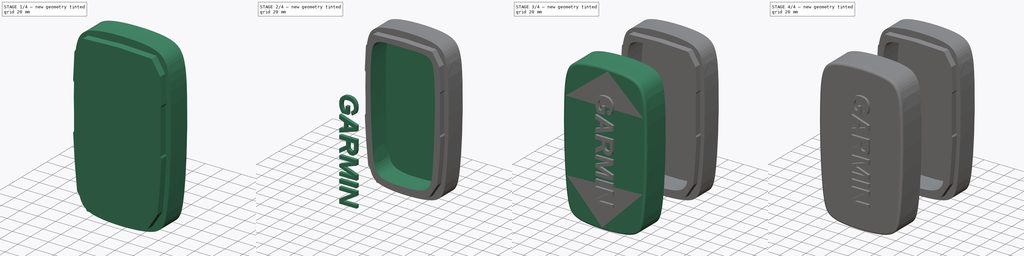
[diagram: build sequence overview — one tinted view per stage of 4, left to right]
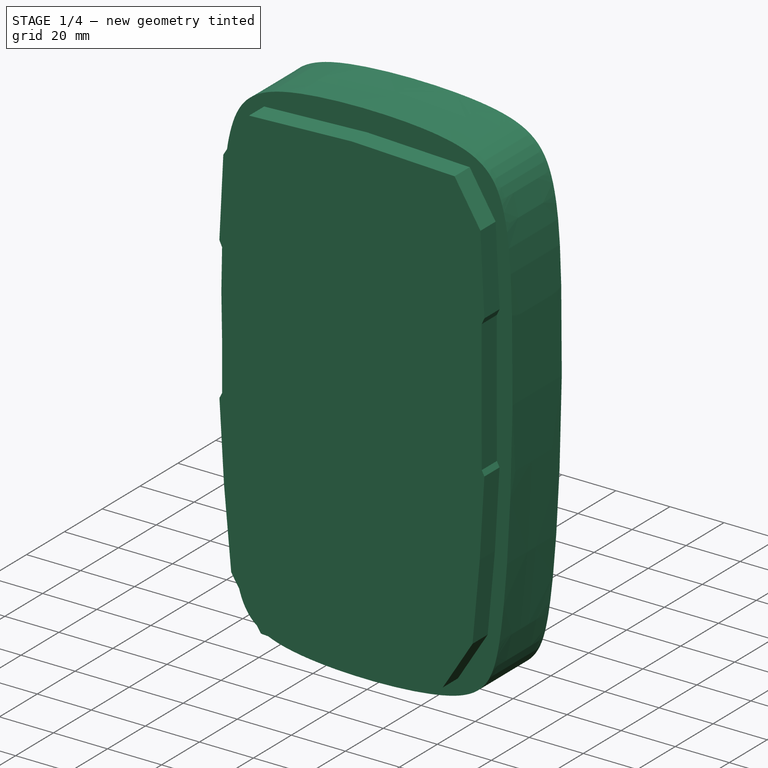
[diagram: stage 1 of 4 — iso view after this stage's code; geometry added in this stage tinted green]
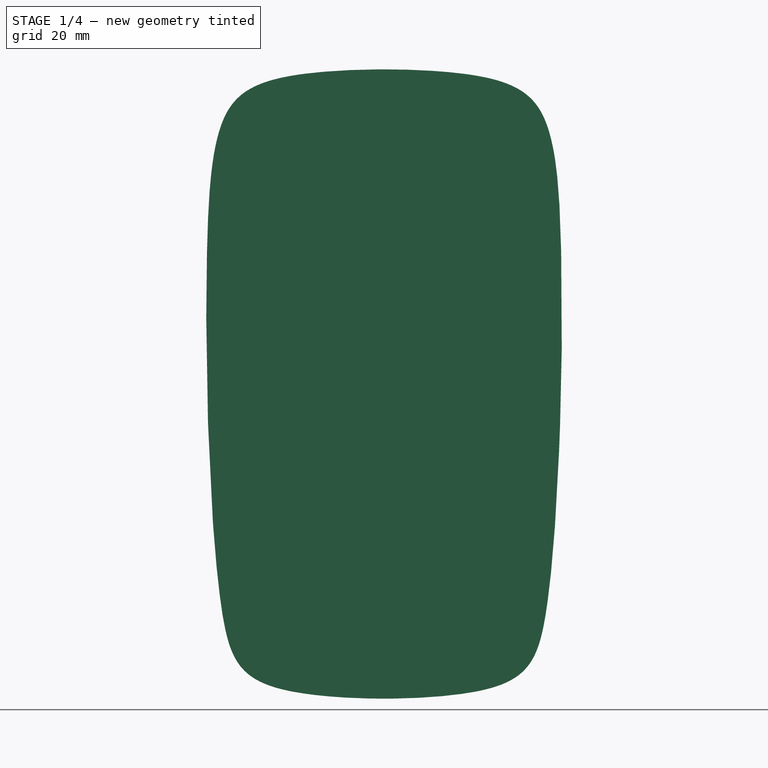
[diagram: stage 1 of 4 — front view after this stage's code; geometry added in this stage tinted green]
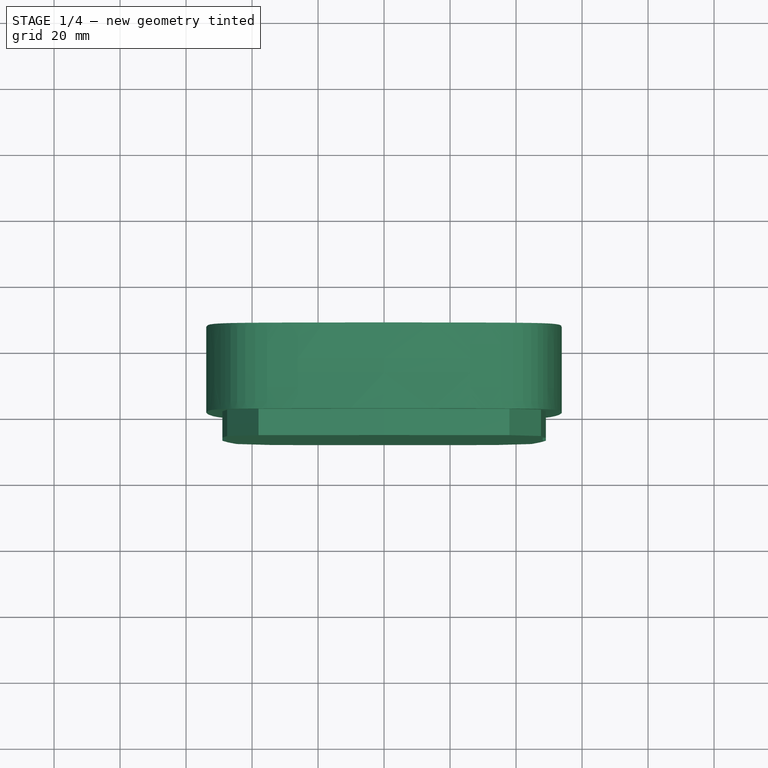
[diagram: stage 1 of 4 — top view after this stage's code; geometry added in this stage tinted green]
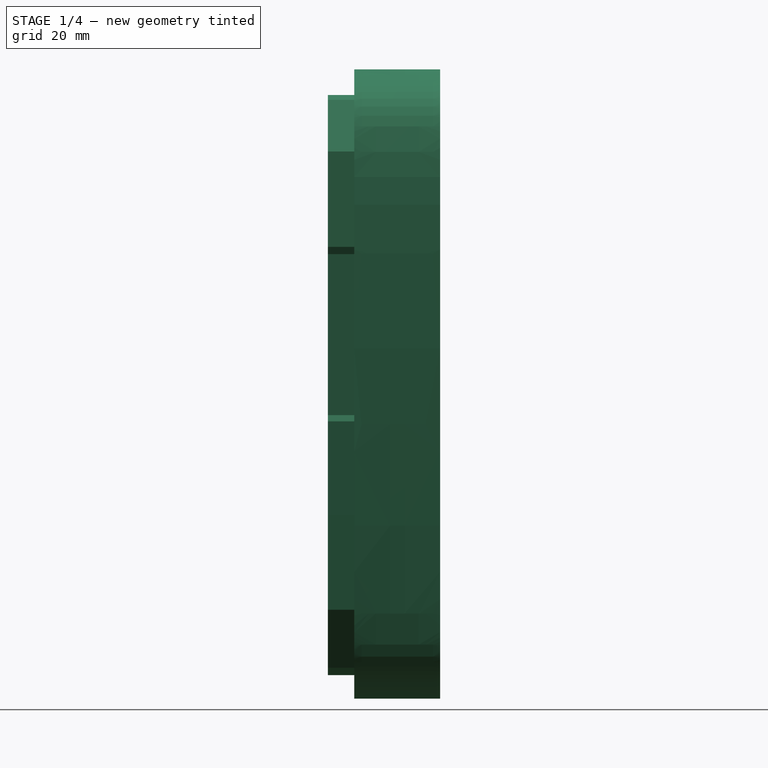
[diagram: stage 1 of 4 — right view after this stage's code; geometry added in this stage tinted green]
FCSTD DOCUMENT  (FreeCAD 0.17R13541 (Git))
Label: garmin_cover
License: All rights reserved
LicenseURL: http://en.wikipedia.org/wiki/All_rights_reserved
objects: Sketcher::SketchObject×7, App::MeasureDistance×3, PartDesign::Pad×3, PartDesign::Pocket×3, Image::ImagePlane×2, PartDesign::Body×2, App::Part×2, PartDesign::Fillet×1, Part::Part2DObjectPython×1, Part::Extrusion×1, Part::Fuse×1
note: 25 computed .brp shape members not serialized (recipe doc carries the construction recipe); baked Part::Feature solids carry a one-line shape summary decoded from their .brp

FEATURE [App::Part] Part  label="cover"
  Group = -> [Body,ShapeString,Extrude,Fusion]
  License = CC BY 3.0
  LicenseURL = http://creativecommons.org/licenses/by/3.0/
  Origin = -> Origin001
FEATURE [Sketcher::SketchObject] Sketch004  label="FaceOuterSketchCopy"
  AttachmentOffset = pos=(0,0,-80) rot=(0,0,1;0rad)
  MapMode = 5
  Placement = pos=(0,80,8e-12) rot=(1,0,0;1.5708rad)
  Support = -> [XZ_Plane003]
  sketch-geometry (26):
    g0-g11: Circle [constr] x12 (B-spline internal-alignment scaffolding for g12; pole/knot coordinates omitted)
    g12: BSplineCurve PolesCount=12 KnotsCount=13 Degree=3 IsPeriodic=1
    g13-g25: GeomPoint [constr] x13 (B-spline internal-alignment scaffolding for g12; pole/knot coordinates omitted)
  constraints (22):
    c: Radius(g0) = 4
    c: Equal(g0, g1-g11) x11
    c: InternalAlignment(g0-g11 -> g12) x12
    c: InternalAlignment(g13-g25 -> g12) x13
    c: Symmetric(g0,g11,g-2)
    c: Symmetric(g10,g1,g-2)
    c: Symmetric(g2,g9,g-2)
    c: Symmetric(g3,g8,g-2)
    c: Symmetric(g4,g7,g-2)
    c: Symmetric(g6,g5,g-2)
    c: DistanceY(g8,g-1) = 8
    c: DistanceY(g-1,g9) = 42
    c: DistanceY(g-1,g10) = 84
    c: DistanceY(g-1,g11) = 97
    c: DistanceY(g7,g-1) = 77
    c: DistanceY(g6,g-1) = 95
    c: DistanceX(g-1,g8) = 54
    c: DistanceX(g-1,g11) = 35
    c: DistanceX(g-1,g10) = 52
    c: DistanceX(g-1,g9) = 54
    c: DistanceX(g-1,g6) = 40
    c: DistanceX(g-1,g7) = 50
FEATURE [Sketcher::SketchObject] Sketch005  label="FaceInnerSketchCopy"
  MapMode = 5
  Placement = pos=(0,0,0) rot=(1,0,0;1.5708rad)
  Support = -> [XZ_Plane003]
  sketch-geometry (22):
    g0: LineSegment StartX=-38.3 StartY=87.6 StartZ=0 EndX=-48.05 EndY=71.7 EndZ=0
    g1: LineSegment StartX=-48.05 StartY=71.7 StartZ=0 EndX=-49.5 EndY=42.5 EndZ=0
    g2: LineSegment StartX=-49.5 StartY=42.5 StartZ=0 EndX=-48.5 EndY=40.4 EndZ=0
    g3: LineSegment StartX=-48.5 StartY=40.4 StartZ=0 EndX=-48.5 EndY=9 EndZ=0
    g4: LineSegment StartX=-48.5 StartY=9 StartZ=0 EndX=-48.5 EndY=-8.15 EndZ=0
    g5: LineSegment StartX=-48.5 StartY=-8.15 StartZ=0 EndX=-49.5 EndY=-10.1 EndZ=0
    g6: LineSegment StartX=-49.5 StartY=-10.1 StartZ=0 EndX=-47.8 EndY=-38.7 EndZ=0
    g7: LineSegment StartX=-47.8 StartY=-38.7 StartZ=0 EndX=-45.1 EndY=-67.5 EndZ=0
    g8: LineSegment StartX=-45.1 StartY=-67.5 StartZ=0 EndX=-33.9 EndY=-85.3 EndZ=0
    g9: LineSegment StartX=38.3 StartY=87.6 StartZ=0 EndX=48.05 EndY=71.7 EndZ=0
    g10: LineSegment StartX=48.05 StartY=71.7 StartZ=0 EndX=49.5 EndY=42.5 EndZ=0
    g11: LineSegment StartX=49.5 StartY=42.5 StartZ=0 EndX=48.5 EndY=40.4 EndZ=0
    g12: LineSegment StartX=48.5 StartY=40.4 StartZ=0 EndX=48.5 EndY=9 EndZ=0
    g13: LineSegment StartX=48.5 StartY=9 StartZ=0 EndX=48.5 EndY=-8.15 EndZ=0
    g14: LineSegment StartX=48.5 StartY=-8.15 StartZ=0 EndX=49.5 EndY=-10.1 EndZ=0
    g15: LineSegment StartX=49.5 StartY=-10.1 StartZ=0 EndX=47.8 EndY=-38.7 EndZ=0
    g16: LineSegment StartX=47.8 StartY=-38.7 StartZ=0 EndX=45.1 EndY=-67.5 EndZ=0
    g17: LineSegment StartX=45.1 StartY=-67.5 StartZ=0 EndX=33.9 EndY=-85.3 EndZ=0
    g18: LineSegment StartX=-38.3 StartY=87.6 StartZ=0 EndX=0 EndY=89.2 EndZ=0
    g19: LineSegment StartX=0 StartY=89.2 StartZ=0 EndX=38.3 EndY=87.6 EndZ=0
    g20: LineSegment StartX=-33.9 StartY=-85.3 StartZ=0 EndX=0 EndY=-87.6083 EndZ=0
    g21: LineSegment StartX=0 StartY=-87.6083 StartZ=0 EndX=33.9 EndY=-85.3 EndZ=0
  constraints (57):
    c: Coincident(g0,g1)
    c: Coincident(g1,g2)
    c: Coincident(g2,g3)
    c: Vertical(g3)
    c: Coincident(g3,g4)
    c: Vertical(g4)
    c: Coincident(g4,g5)
    c: Coincident(g5,g6)
    c: Coincident(g6,g7)
    c: Coincident(g7,g8)
    c: Coincident(g9,g10)
    c: Coincident(g10,g11)
    c: Coincident(g11,g12)
    c: Vertical(g12)
    c: Coincident(g12,g13)
    c: Vertical(g13)
    c: Coincident(g13,g14)
    c: Coincident(g14,g15)
    c: Coincident(g15,g16)
    c: Coincident(g16,g17)
    c: Symmetric(g17,g8,g-2)
    c: Symmetric(g16,g7,g-2)
    c: Symmetric(g15,g6,g-2)
    c: Symmetric(g14,g5,g-2)
    c: Symmetric(g13,g4,g-2)
    c: Symmetric(g12,g3,g-2)
    c: Symmetric(g11,g2,g-2)
    c: Symmetric(g10,g1,g-2)
    c: Symmetric(g9,g0,g-2)
    c: Symmetric(g9,g0,g-2)
    c: DistanceY(g-1,g12) = 9
    c: DistanceY(g-1,g11) = 40.4
    c: DistanceY(g-1,g10) = 42.5
    c: DistanceY(g-1,g9) = 71.7
    c: DistanceY(g-1,g9) = 87.6
    c: DistanceY(g13,g-1) = 8.15
    c: DistanceY(g14,g-1) = 10.1
    c: DistanceY(g15,g-1) = 38.7
    c: DistanceY(g16,g-1) = 67.5
    c: DistanceY(g17,g-1) = 85.3
    c: DistanceX(g-1,g17) = 33.9
    c: DistanceX(g-1,g16) = 45.1
    c: DistanceX(g-1,g15) = 47.8
    c: DistanceX(g-1,g14) = 49.5
    c: DistanceX(g-1,g13) = 48.5
    c: DistanceX(g-1,g9) = 38.3
    c: DistanceX(g-1,g9) = 48.05
    c: DistanceX(g-1,g10) = 49.5
    c: Coincident(g0,g18)
    c: Coincident(g18,g19)
    c: Coincident(g19,g9)
    c: DistanceY(g-1,g18) = 89.2
    c: PointOnObject(g18,g-2)
    c: Coincident(g8,g20)
    c: PointOnObject(g20,g-2)
    c: Coincident(g20,g21)
    c: Coincident(g21,g17)
FEATURE [Sketcher::SketchObject] Sketch003  label="BorderOuterSketch"
  AttachmentOffset = pos=(0,0,-80) rot=(0,0,1;0rad)
  ExternalGeometry = -> [Sketch005]
  MapMode = 5
  Placement = pos=(0,80,8e-12) rot=(1,0,0;1.5708rad)
  Support = -> [XZ_Plane003]
  sketch-geometry (22):
    g0: LineSegment StartX=0 StartY=88.7 StartZ=0 EndX=-38.0625 EndY=87.16 EndZ=0
    g1: LineSegment StartX=-38.0625 StartY=87.16 StartZ=0 EndX=-47.57 EndY=71.56 EndZ=0
    g2: LineSegment StartX=-47.57 StartY=71.56 StartZ=0 EndX=-49.02 EndY=42.64 EndZ=0
    g3: LineSegment StartX=-49.02 StartY=42.64 StartZ=0 EndX=-48.0049 EndY=40.47 EndZ=0
    g4: LineSegment StartX=-48.0049 StartY=40.47 StartZ=0 EndX=-48.0001 EndY=8.99 EndZ=0
    g5: LineSegment StartX=-48.0001 StartY=8.99 StartZ=0 EndX=-48.0123 EndY=-8.26 EndZ=0
    g6: LineSegment StartX=-48.0123 StartY=-8.26 StartZ=0 EndX=-49.0009 EndY=-10.13 EndZ=0
    g7: LineSegment StartX=-49.0009 StartY=-10.13 StartZ=0 EndX=-47.3025 EndY=-38.65 EndZ=0
    g8: LineSegment StartX=-47.3025 StartY=-38.65 StartZ=0 EndX=-44.6462 EndY=-67.29 EndZ=0
    g9: LineSegment StartX=-44.6462 StartY=-67.29 StartZ=0 EndX=-33.6625 EndY=-84.86 EndZ=0
    g10: LineSegment StartX=-33.6625 StartY=-84.86 StartZ=0 EndX=0 EndY=-87.1083 EndZ=0
    g11: LineSegment StartX=0 StartY=-87.1083 StartZ=0 EndX=33.6138 EndY=-84.89 EndZ=0
    g12: LineSegment StartX=33.6138 StartY=-84.89 StartZ=0 EndX=44.6335 EndY=-67.32 EndZ=0
    g13: LineSegment StartX=44.6335 StartY=-67.32 StartZ=0 EndX=47.3082 EndY=-38.61 EndZ=0
    g14: LineSegment StartX=47.3082 StartY=-38.61 StartZ=0 EndX=49.0172 EndY=-10.23 EndZ=0
    g15: LineSegment StartX=49.0172 StartY=-10.23 StartZ=0 EndX=48.0375 EndY=-8.34 EndZ=0
    g16: LineSegment StartX=48.0375 StartY=-8.34 StartZ=0 EndX=48.0025 EndY=9.05 EndZ=0
    g17: LineSegment StartX=48.0025 StartY=9.05 StartZ=0 EndX=48.0049 EndY=40.47 EndZ=0
    g18: LineSegment StartX=48.0049 StartY=40.47 StartZ=0 EndX=49.0263 EndY=42.66 EndZ=0
    g19: LineSegment StartX=49.0263 StartY=42.66 StartZ=0 EndX=47.57 EndY=71.56 EndZ=0
    g20: LineSegment StartX=47.57 StartY=71.56 StartZ=0 EndX=37.9871 EndY=87.21 EndZ=0
    g21: LineSegment StartX=37.9871 StartY=87.21 StartZ=0 EndX=0 EndY=88.7 EndZ=0
  constraints (66):
    c: PointOnObject(g0,g-2)
    c: Coincident(g0,g1)
    c: Coincident(g1,g2)
    c: Coincident(g2,g3)
    c: Coincident(g3,g4)
    c: Coincident(g4,g5)
    c: Coincident(g5,g6)
    c: Coincident(g6,g7)
    c: Coincident(g7,g8)
    c: Coincident(g8,g9)
    c: Coincident(g9,g10)
    c: PointOnObject(g10,g-2)
    c: Coincident(g10,g11)
    c: Coincident(g11,g12)
    c: Coincident(g12,g13)
    c: Coincident(g13,g14)
    c: Coincident(g14,g15)
    c: Coincident(g15,g16)
    c: Coincident(g16,g17)
    c: Coincident(g17,g18)
    c: Coincident(g18,g19)
    c: Coincident(g19,g20)
    c: Coincident(g20,g21)
    c: Coincident(g21,g0)
    c: Distance(g0,g-6) = 0.5
    c: Distance(g0,g-5) = 0.5
    c: Distance(g1,g-4) = 0.5
    c: Distance(g2,g-13) = 0.5
    c: Distance(g3,g-14) = 0.5
    c: Distance(g4,g-15) = 0.5
    c: Distance(g-16,g5) = 0.5
    c: Distance(g6,g-17) = 0.5
    c: Distance(g7,g-18) = 0.5
    c: Distance(g8,g-19) = 0.5
    c: Distance(g9,g-20) = 0.5
    c: Distance(g10,g-21) = 0.5
    c: Distance(g11,g-22) = 0.5
    c: Distance(g12,g-23) = 0.5
    c: Distance(g13,g-23) = 0.5
    c: Distance(g14,g-12) = 0.5
    c: Distance(g15,g-12) = 0.5
    c: Distance(g16,g-9) = 0.5
    c: Distance(g17,g-11) = 0.5
    c: Distance(g18,g-11) = 0.5
    c: Distance(g19,g-24) = 0.5
    c: Distance(g20,g-24) = 0.5
    c: DistanceY(g-1,g0) = 87.16
    c: DistanceY(g-1,g1) = 71.56
    c: DistanceY(g-1,g2) = 42.64
    c: DistanceY(g-1,g3) = 40.47
    c: DistanceY(g-1,g4) = 8.99
    c: DistanceY(g5,g-1) = 8.26
    c: DistanceY(g6,g-1) = 10.13
    c: DistanceY(g7,g-1) = 38.65
    c: DistanceY(g8,g-1) = 67.29
    c: DistanceY(g9,g-1) = 84.86
    c: DistanceY(g-1,g16) = 9.05
    c: DistanceY(g-1,g17) = 40.47
    c: DistanceY(g-1,g18) = 42.66
    c: DistanceY(g19) = 71.56
    c: DistanceY(g-1,g20) = 87.21
    c: DistanceY(g15,g-1) = 8.34
    c: DistanceY(g14,g-1) = 10.23
    c: DistanceY(g13,g-1) = 38.61
    c: DistanceY(g12,g-1) = 67.32
    c: DistanceY(g11,g-1) = 84.89
FEATURE [PartDesign::Pad] Pad001  label="BackPad"
  Length = 26
  Length2 = 100
  Placement = pos=(0,0,0) rot=(1,0,0;1.5708rad)
  Profile = -> Sketch004
  Reversed = true
  Type = 0
FEATURE [PartDesign::Pad] Pad002  label="BorderPad"
  BaseFeature = -> Pad001
  Length = 8
  Length2 = 100
  Placement = pos=(0,0,0) rot=(1,0,0;1.5708rad)
  Profile = -> Sketch003
  Type = 0
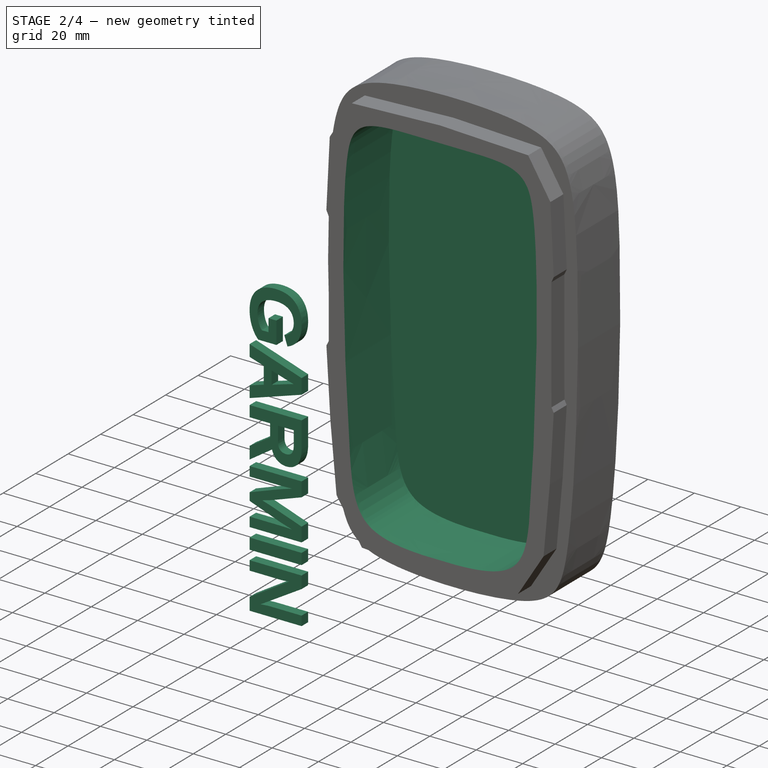
[diagram: stage 2 of 4 — iso view after this stage's code; geometry added in this stage tinted green]
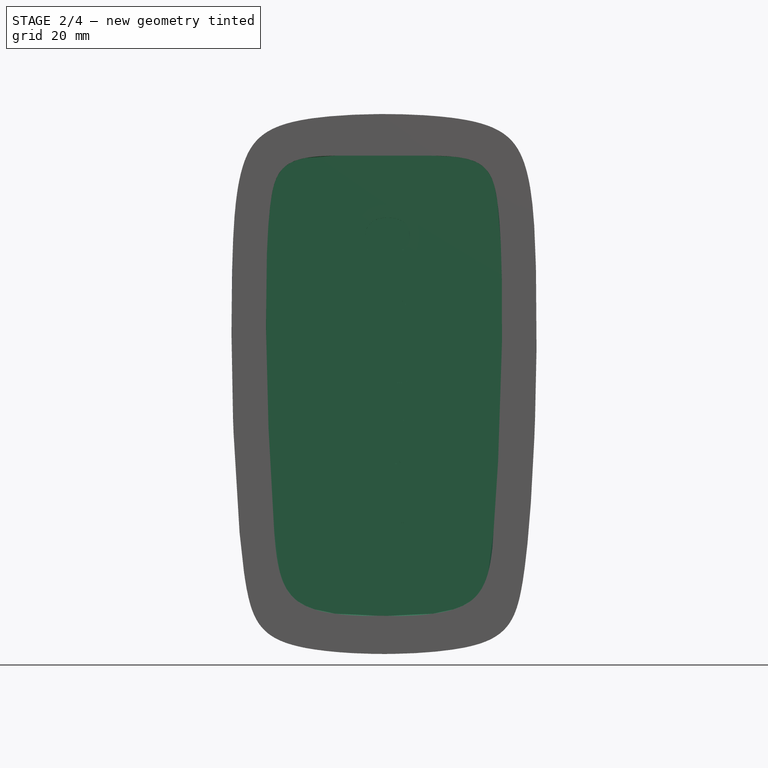
[diagram: stage 2 of 4 — front view after this stage's code; geometry added in this stage tinted green]
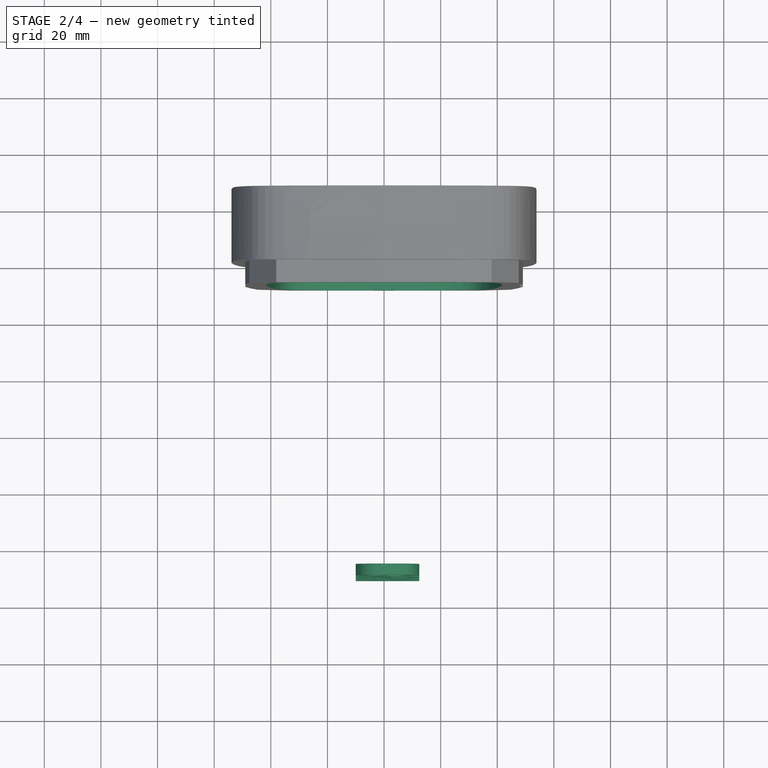
[diagram: stage 2 of 4 — top view after this stage's code; geometry added in this stage tinted green]
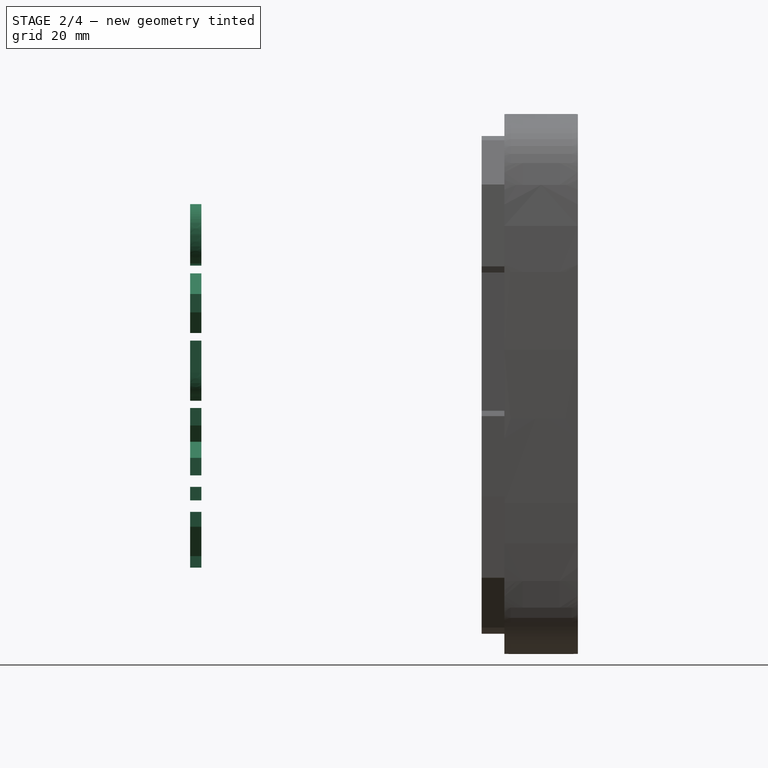
[diagram: stage 2 of 4 — right view after this stage's code; geometry added in this stage tinted green]
FEATURE [PartDesign::Body] Body  label="CoverBody"
  Group = -> [Sketch,Pad,Sketch001,Pocket,Fillet,Sketch002,Pocket001]
  Origin = -> Origin
  Tip = -> Pocket001
FEATURE [Part::Part2DObjectPython] ShapeString  # Draft 2D object (typed FeaturePython)
  FontFile = <path>
  Placement = pos=(0,-36,26) rot=(1,0,0;1.5708rad)
  Size = 25
  String = GARMIN
  Tracking = 0
FEATURE [Part::Extrusion] Extrude
  Base = -> ShapeString
  Dir = (0,-1,0)
  DirMode = 2
  FaceMakerClass = Part::FaceMakerBullseye
  LengthFwd = 4
  LengthRev = 0
  Placement = pos=(-36,9,66) rot=(0,1,0;1.5708rad)
  Solid = false
  Symmetric = false
FEATURE [Sketcher::SketchObject] Sketch006  label="ChamberSketch"
  MapMode = 5
  Placement = pos=(0,72,7e-12) rot=(1,0,0;1.5708rad)
  Support = -> [Pad002]
  sketch-geometry (30):
    g0-g13: Circle [constr] x14 (B-spline internal-alignment scaffolding for g14; pole/knot coordinates omitted)
    g14: BSplineCurve PolesCount=14 KnotsCount=15 Degree=3 IsPeriodic=1
    g15-g29: GeomPoint [constr] x15 (B-spline internal-alignment scaffolding for g14; pole/knot coordinates omitted)
  constraints (27):
    c: PointOnObject(g0,g-2)
    c: Radius(g0) = 5
    c: Equal(g0, g1-g7) x7
    c: PointOnObject(g7,g-2)
    c: Equal(g0, g8-g13) x6
    c: InternalAlignment(g0-g13 -> g14) x14
    c: InternalAlignment(g15-g29 -> g14) x15
    c: Symmetric(g2,g12,g-2)
    c: Symmetric(g1,g13,g-2)
    c: Symmetric(g3,g11,g-2)
    c: Symmetric(g4,g10,g-2)
    c: Symmetric(g5,g9,g-2)
    c: Symmetric(g6,g8,g-2)
    c: DistanceX(g-1,g11) = 41.66
    c: DistanceY(g-1,g11) = 1.89
    c: DistanceX(g-1,g10) = 41.87
    c: DistanceY(g-1,g10) = 37.34
    c: DistanceY(g-1,g7) = 80.9
    c: DistanceY(g7,g8) = 2.27
    c: DistanceX(g7,g8) = 35.7
    c: DistanceX(g7,g9) = 40.68
    c: DistanceY(g9,g7) = 12.94
    c: DistanceY(g12,g-1) = 52.97
    c: DistanceX(g-1,g12) = 39.12
    c: DistanceX(g-1,g13) = 35.88
    c: DistanceY(g13,g-1) = 79.92
    c: DistanceY(g0,g-1) = 81.32
FEATURE [PartDesign::Pocket] Pocket002
  BaseFeature = -> Pad002
  Length = 28
  Length2 = 100
  Placement = pos=(0,0,0) rot=(1,0,0;1.5708rad)
  Profile = -> Sketch006
  Type = 0
FEATURE [PartDesign::Body] Body001  label="BackBody"
  Group = -> [Sketch003,Sketch004,Sketch005,Pad001,Sketch006,Pad002,Pocket002]
  Origin = -> Origin003
  Tip = -> Pocket002
FEATURE [App::Part] Part001  label="back"
  Group = -> [Body001]
  License = CC BY 3.0
  LicenseURL = http://creativecommons.org/licenses/by/3.0/
  Origin = -> Origin002
note: 1 file-system path scrubbed to <path> (originals preserved in the JSON sidecar)
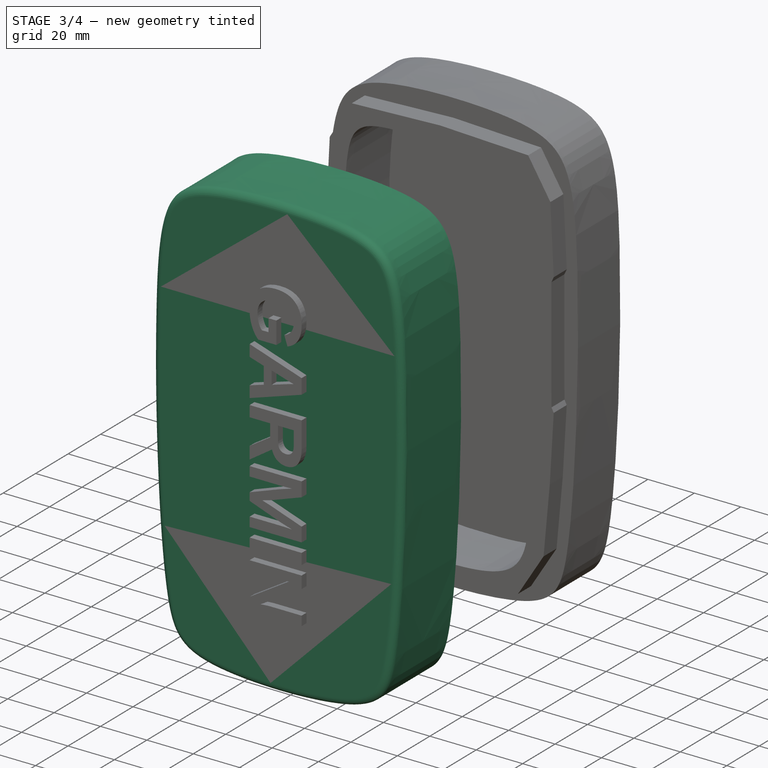
[diagram: stage 3 of 4 — iso view after this stage's code; geometry added in this stage tinted green]
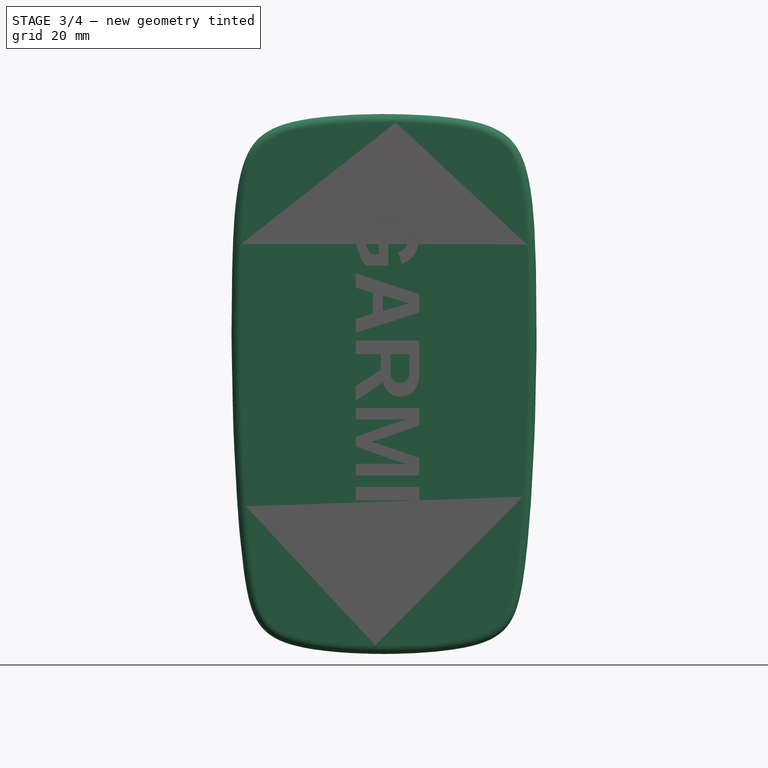
[diagram: stage 3 of 4 — front view after this stage's code; geometry added in this stage tinted green]
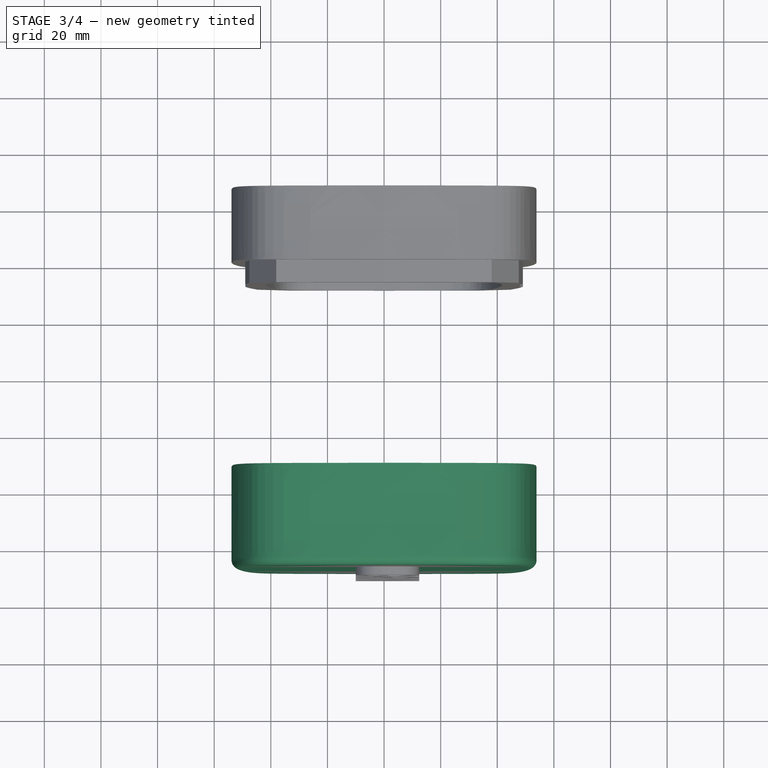
[diagram: stage 3 of 4 — top view after this stage's code; geometry added in this stage tinted green]
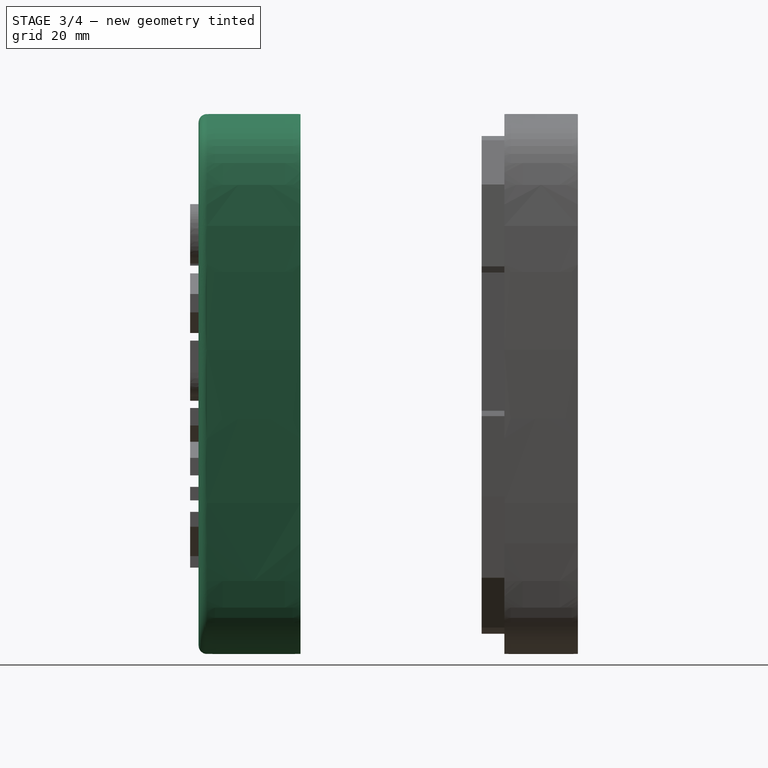
[diagram: stage 3 of 4 — right view after this stage's code; geometry added in this stage tinted green]
FEATURE [Image::ImagePlane] ImagePlane  label="FaceImage"
  Placement = pos=(0,0,0) rot=(-1,0,0;4.71239rad)
  XSize = 102
  YSize = 185
FEATURE [App::MeasureDistance] Distance  label="Distance: 174 mm"
  Distance = 174
  P1 = (0,0,88)
  P2 = (0,0,-86)
FEATURE [App::MeasureDistance] Distance001  label="Distance: 98 mm"
  Distance = 98
  P1 = (-49,0,-13)
  P2 = (49,0,-13)
FEATURE [Sketcher::SketchObject] Sketch  label="FaceOuterSketch"
  MapMode = 5
  Placement = pos=(0,0,0) rot=(1,0,0;1.5708rad)
  Support = -> [XZ_Plane]
  sketch-geometry (26):
    g0-g11: Circle [constr] x12 (B-spline internal-alignment scaffolding for g12; pole/knot coordinates omitted)
    g12: BSplineCurve PolesCount=12 KnotsCount=13 Degree=3 IsPeriodic=1
    g13-g25: GeomPoint [constr] x13 (B-spline internal-alignment scaffolding for g12; pole/knot coordinates omitted)
  constraints (22):
    c: Radius(g0) = 4
    c: Equal(g0, g1-g11) x11
    c: InternalAlignment(g0-g11 -> g12) x12
    c: InternalAlignment(g13-g25 -> g12) x13
    c: Symmetric(g0,g11,g-2)
    c: Symmetric(g10,g1,g-2)
    c: Symmetric(g2,g9,g-2)
    c: Symmetric(g3,g8,g-2)
    c: Symmetric(g4,g7,g-2)
    c: Symmetric(g6,g5,g-2)
    c: DistanceY(g8,g-1) = 8
    c: DistanceY(g-1,g9) = 42
    c: DistanceY(g-1,g10) = 84
    c: DistanceY(g-1,g11) = 97
    c: DistanceY(g7,g-1) = 77
    c: DistanceY(g6,g-1) = 95
    c: DistanceX(g-1,g8) = 54
    c: DistanceX(g-1,g11) = 35
    c: DistanceX(g-1,g10) = 52
    c: DistanceX(g-1,g9) = 54
    c: DistanceX(g-1,g6) = 40
    c: DistanceX(g-1,g7) = 50
FEATURE [Image::ImagePlane] ImagePlane001  label="SideImage"
  Placement = pos=(0,0,0) rot=(0.57735,0.57735,0.57735;2.0944rad)
  XSize = 48
  YSize = 182
FEATURE [App::MeasureDistance] Distance002  label="Distance: 42 mm"
  Distance = 42
  P1 = (0,21,-18)
  P2 = (0,-21,-18)
FEATURE [PartDesign::Pad] Pad
  Length = 28
  Length2 = 8
  Placement = pos=(0,0,0) rot=(1,0,0;1.5708rad)
  Profile = -> Sketch
  Type = 4
FEATURE [Sketcher::SketchObject] Sketch001  label="FaceInnerSketch"
  MapMode = 5
  Placement = pos=(0,0,0) rot=(1,0,0;1.5708rad)
  Support = -> [XZ_Plane]
  sketch-geometry (22):
    g0: LineSegment StartX=-38.3 StartY=87.6 StartZ=0 EndX=-48.05 EndY=71.7 EndZ=0
    g1: LineSegment StartX=-48.05 StartY=71.7 StartZ=0 EndX=-49.5 EndY=42.5 EndZ=0
    g2: LineSegment StartX=-49.5 StartY=42.5 StartZ=0 EndX=-48.5 EndY=40.4 EndZ=0
    g3: LineSegment StartX=-48.5 StartY=40.4 StartZ=0 EndX=-48.5 EndY=9 EndZ=0
    g4: LineSegment StartX=-48.5 StartY=9 StartZ=0 EndX=-48.5 EndY=-8.15 EndZ=0
    g5: LineSegment StartX=-48.5 StartY=-8.15 StartZ=0 EndX=-49.5 EndY=-10.1 EndZ=0
    g6: LineSegment StartX=-49.5 StartY=-10.1 StartZ=0 EndX=-47.8 EndY=-38.7 EndZ=0
    g7: LineSegment StartX=-47.8 StartY=-38.7 StartZ=0 EndX=-45.1 EndY=-67.5 EndZ=0
    g8: LineSegment StartX=-45.1 StartY=-67.5 StartZ=0 EndX=-33.9 EndY=-85.3 EndZ=0
    g9: LineSegment StartX=38.3 StartY=87.6 StartZ=0 EndX=48.05 EndY=71.7 EndZ=0
    g10: LineSegment StartX=48.05 StartY=71.7 StartZ=0 EndX=49.5 EndY=42.5 EndZ=0
    g11: LineSegment StartX=49.5 StartY=42.5 StartZ=0 EndX=48.5 EndY=40.4 EndZ=0
    g12: LineSegment StartX=48.5 StartY=40.4 StartZ=0 EndX=48.5 EndY=9 EndZ=0
    g13: LineSegment StartX=48.5 StartY=9 StartZ=0 EndX=48.5 EndY=-8.15 EndZ=0
    g14: LineSegment StartX=48.5 StartY=-8.15 StartZ=0 EndX=49.5 EndY=-10.1 EndZ=0
    g15: LineSegment StartX=49.5 StartY=-10.1 StartZ=0 EndX=47.8 EndY=-38.7 EndZ=0
    g16: LineSegment StartX=47.8 StartY=-38.7 StartZ=0 EndX=45.1 EndY=-67.5 EndZ=0
    g17: LineSegment StartX=45.1 StartY=-67.5 StartZ=0 EndX=33.9 EndY=-85.3 EndZ=0
    g18: LineSegment StartX=-38.3 StartY=87.6 StartZ=0 EndX=0 EndY=89.2 EndZ=0
    g19: LineSegment StartX=0 StartY=89.2 StartZ=0 EndX=38.3 EndY=87.6 EndZ=0
    g20: LineSegment StartX=-33.9 StartY=-85.3 StartZ=0 EndX=0 EndY=-87.6083 EndZ=0
    g21: LineSegment StartX=0 StartY=-87.6083 StartZ=0 EndX=33.9 EndY=-85.3 EndZ=0
  constraints (57):
    c: Coincident(g0,g1)
    c: Coincident(g1,g2)
    c: Coincident(g2,g3)
    c: Vertical(g3)
    c: Coincident(g3,g4)
    c: Vertical(g4)
    c: Coincident(g4,g5)
    c: Coincident(g5,g6)
    c: Coincident(g6,g7)
    c: Coincident(g7,g8)
    c: Coincident(g9,g10)
    c: Coincident(g10,g11)
    c: Coincident(g11,g12)
    c: Vertical(g12)
    c: Coincident(g12,g13)
    c: Vertical(g13)
    c: Coincident(g13,g14)
    c: Coincident(g14,g15)
    c: Coincident(g15,g16)
    c: Coincident(g16,g17)
    c: Symmetric(g17,g8,g-2)
    c: Symmetric(g16,g7,g-2)
    c: Symmetric(g15,g6,g-2)
    c: Symmetric(g14,g5,g-2)
    c: Symmetric(g13,g4,g-2)
    c: Symmetric(g12,g3,g-2)
    c: Symmetric(g11,g2,g-2)
    c: Symmetric(g10,g1,g-2)
    c: Symmetric(g9,g0,g-2)
    c: Symmetric(g9,g0,g-2)
    c: DistanceY(g-1,g12) = 9
    c: DistanceY(g-1,g11) = 40.4
    c: DistanceY(g-1,g10) = 42.5
    c: DistanceY(g-1,g9) = 71.7
    c: DistanceY(g-1,g9) = 87.6
    c: DistanceY(g13,g-1) = 8.15
    c: DistanceY(g14,g-1) = 10.1
    c: DistanceY(g15,g-1) = 38.7
    c: DistanceY(g16,g-1) = 67.5
    c: DistanceY(g17,g-1) = 85.3
    c: DistanceX(g-1,g17) = 33.9
    c: DistanceX(g-1,g16) = 45.1
    c: DistanceX(g-1,g15) = 47.8
    c: DistanceX(g-1,g14) = 49.5
    c: DistanceX(g-1,g13) = 48.5
    c: DistanceX(g-1,g9) = 38.3
    c: DistanceX(g-1,g9) = 48.05
    c: DistanceX(g-1,g10) = 49.5
    c: Coincident(g0,g18)
    c: Coincident(g18,g19)
    c: Coincident(g19,g9)
    c: DistanceY(g-1,g18) = 89.2
    c: PointOnObject(g18,g-2)
    c: Coincident(g8,g20)
    c: PointOnObject(g20,g-2)
    c: Coincident(g20,g21)
    c: Coincident(g21,g17)
FEATURE [PartDesign::Pocket] Pocket  label="BodyPocket"
  BaseFeature = -> Pad
  Length = 8
  Length2 = 20
  Placement = pos=(0,0,0) rot=(1,0,0;1.5708rad)
  Profile = -> Sketch001
  Reversed = true
  Type = 4
FEATURE [PartDesign::Fillet] Fillet
  Base = -> Pocket [Face3]
  BaseFeature = -> Pocket
  Placement = pos=(0,0,0) rot=(1,0,0;1.5708rad)
  Radius = 3
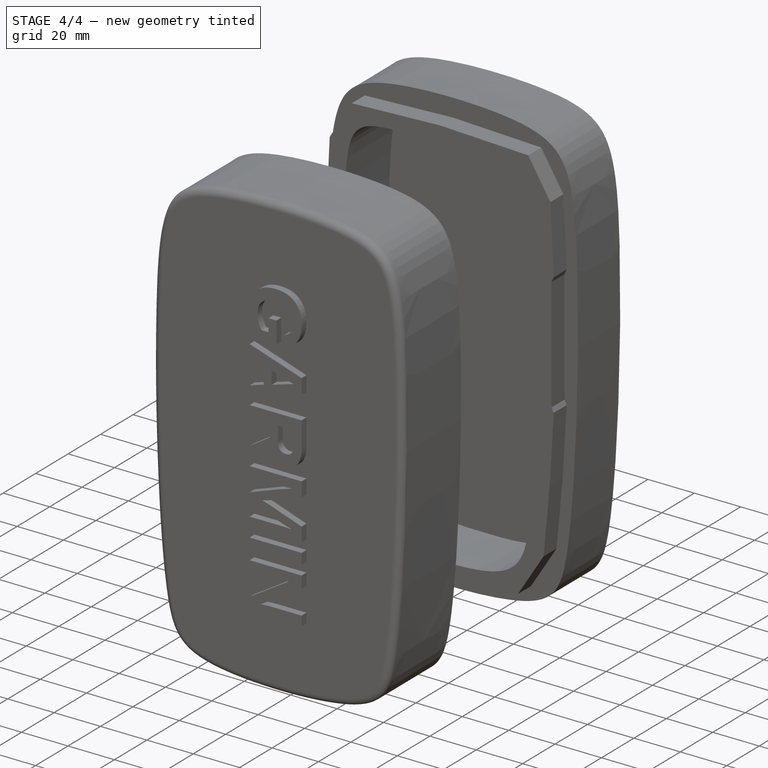
[diagram: stage 4 of 4 — iso view after this stage's code; geometry added in this stage tinted green]
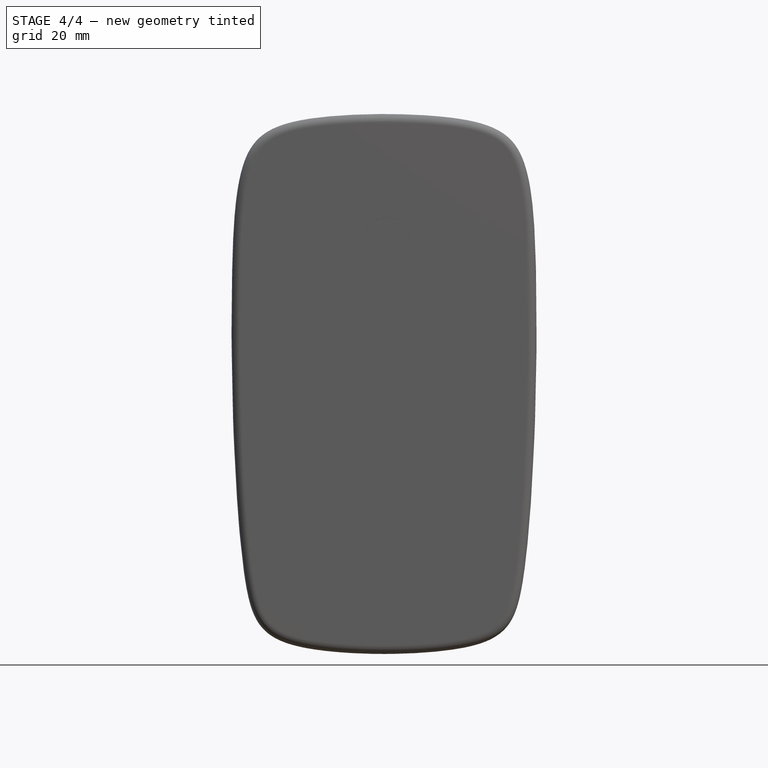
[diagram: stage 4 of 4 — front view after this stage's code; geometry added in this stage tinted green]
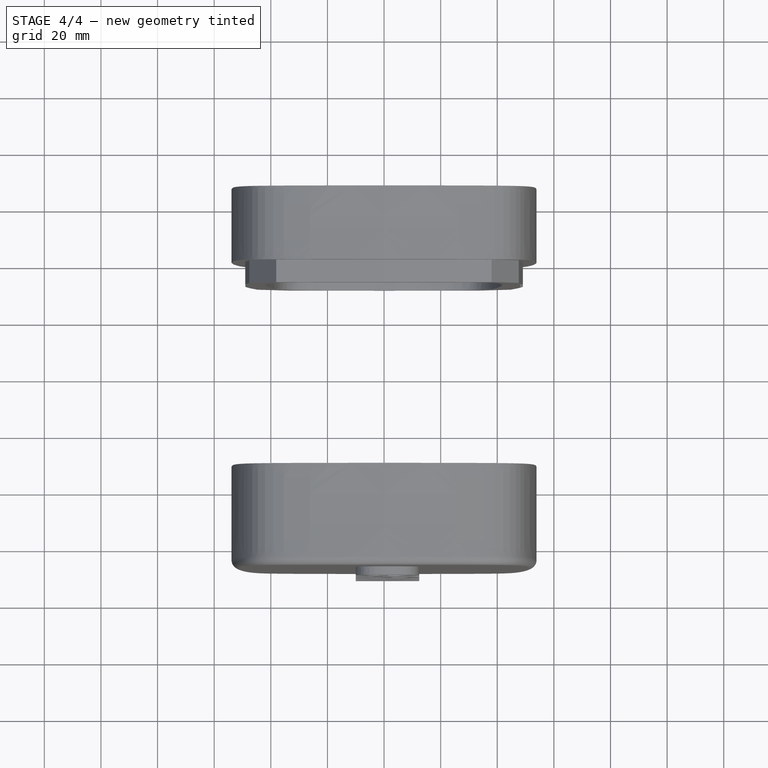
[diagram: stage 4 of 4 — top view after this stage's code; geometry added in this stage tinted green]
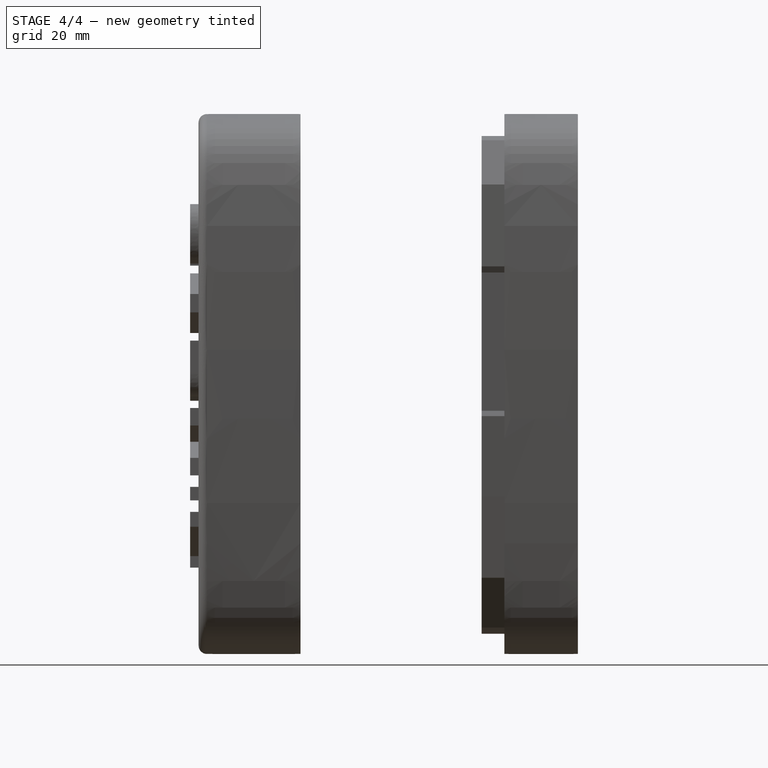
[diagram: stage 4 of 4 — right view after this stage's code; geometry added in this stage tinted green]
FEATURE [Sketcher::SketchObject] Sketch002  label="ButtonsPocketSketch"
  AttachmentOffset = pos=(0,0,0) rot=(0,0,1;3.14159rad)
  MapMode = 45
  Placement = pos=(0,-20,2.23922) rot=(0,0.707107,0.707107;3.14159rad)
  Support = -> [Pocket]
  sketch-geometry (8):
    g0: LineSegment StartX=-19.7 StartY=-30.5 StartZ=0 EndX=19.7 EndY=-30.5 EndZ=0
    g1: LineSegment StartX=19.7 StartY=-30.5 StartZ=0 EndX=19.7 EndY=-50 EndZ=0
    g2: LineSegment StartX=19.7 StartY=-50 StartZ=0 EndX=31 EndY=-50 EndZ=0
    g3: LineSegment StartX=31 StartY=-50 StartZ=0 EndX=29 EndY=-83.5 EndZ=0
    g4: LineSegment StartX=29 StartY=-83.5 StartZ=0 EndX=-29 EndY=-83.5 EndZ=0
    g5: LineSegment StartX=-29 StartY=-83.5 StartZ=0 EndX=-31 EndY=-50 EndZ=0
    g6: LineSegment StartX=-31 StartY=-50 StartZ=0 EndX=-19.7 EndY=-50 EndZ=0
    g7: LineSegment StartX=-19.7 StartY=-50 StartZ=0 EndX=-19.7 EndY=-30.5 EndZ=0
  constraints (23):
    c: Horizontal(g0)
    c: Coincident(g0,g1)
    c: Coincident(g1,g2)
    c: Horizontal(g2)
    c: Coincident(g2,g3)
    c: Coincident(g3,g4)
    c: Horizontal(g4)
    c: Coincident(g4,g5)
    c: Coincident(g5,g6)
    c: Horizontal(g6)
    c: Coincident(g6,g7)
    c: Coincident(g7,g0)
    c: Symmetric(g0,g0,g-2)
    c: Symmetric(g1,g6,g-2)
    c: Symmetric(g5,g2,g-2)
    c: Symmetric(g4,g3,g-2)
    c: DistanceY(g0,g-1) = 30.5
    c: Vertical(g1)
    c: DistanceY(g2,g-1) = 50
    c: DistanceY(g3,g-1) = 83.5
    c: DistanceX(g0,g-1) = 19.7
    c: DistanceX(g5,g-1) = 31
    c: DistanceX(g4,g-1) = 29
FEATURE [PartDesign::Pocket] Pocket001  label="KeyboardPocket"
  BaseFeature = -> Fillet
  Length = 5
  Length2 = 100
  Placement = pos=(0,0,0) rot=(1,0,0;1.5708rad)
  Profile = -> Sketch002
  Type = 0
FEATURE [Part::Fuse] Fusion
  Base = -> Body
  Tool = -> Extrude
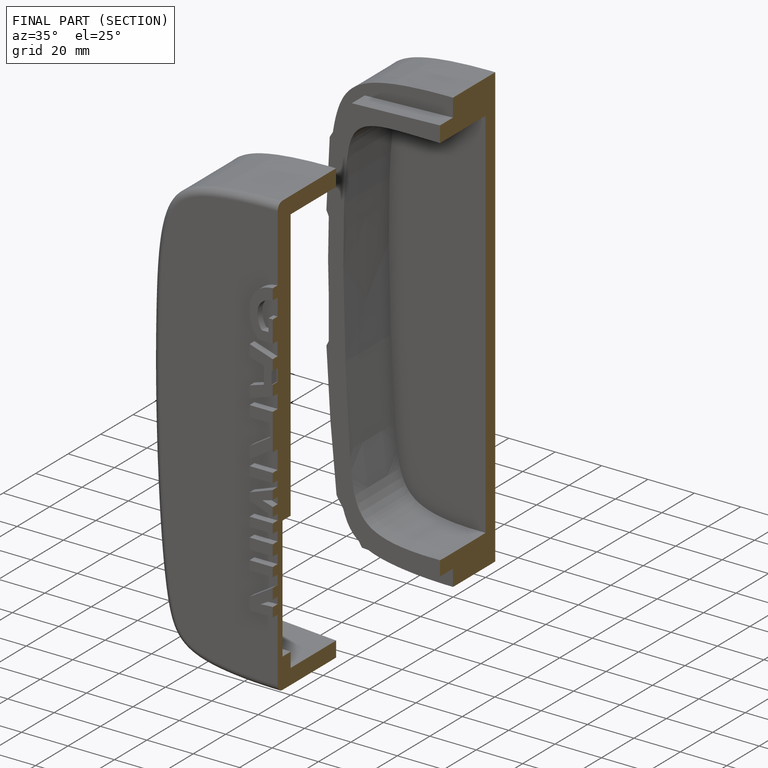
[diagram: finished part — half-section view (interior)]
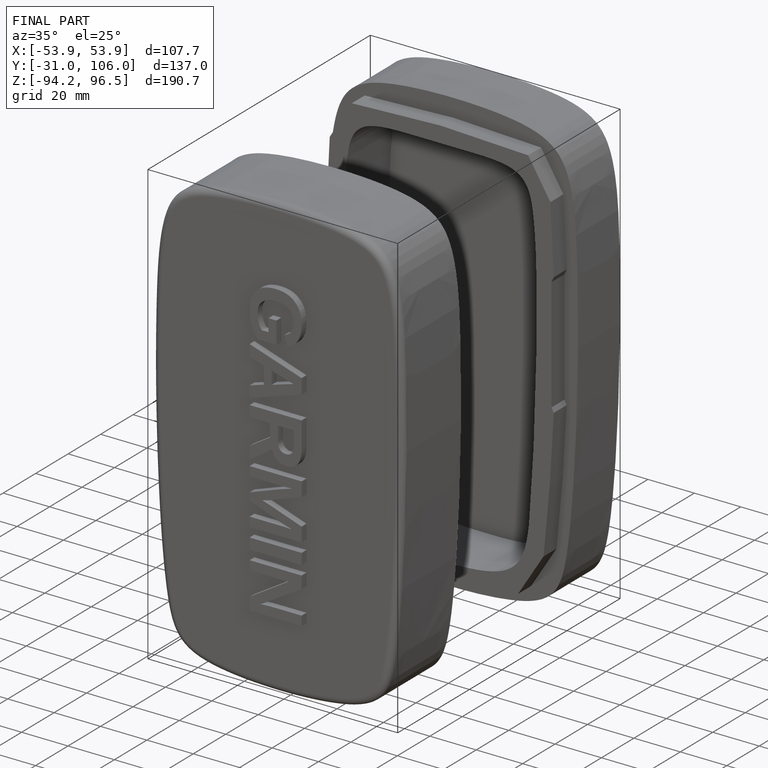
[diagram: finished part — iso view with bounding-box wireframe]
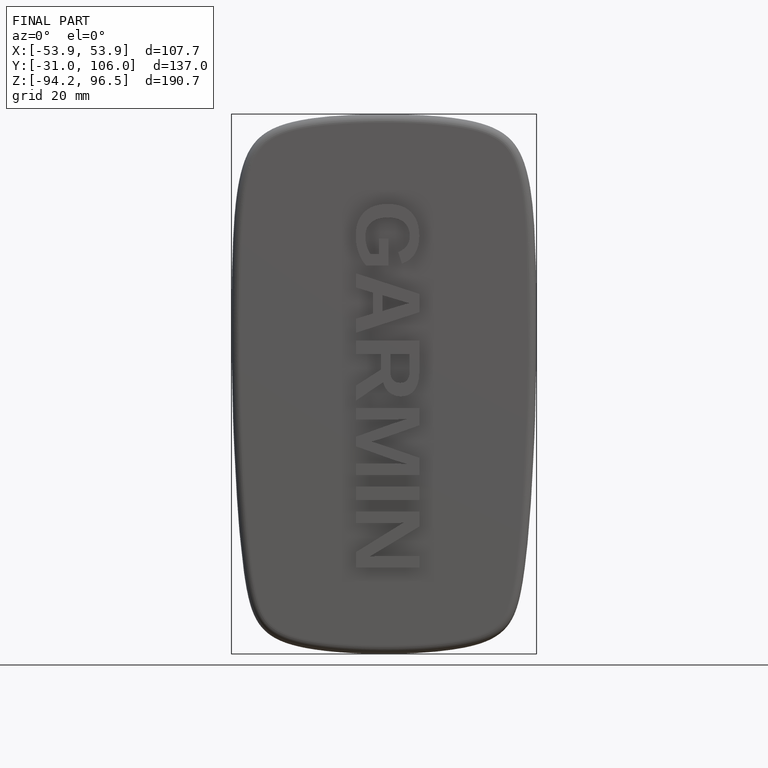
[diagram: finished part — front view with bounding-box wireframe]
